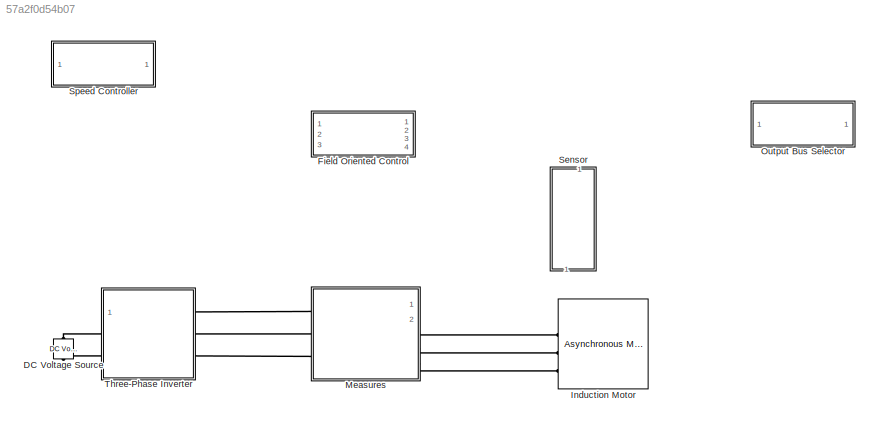
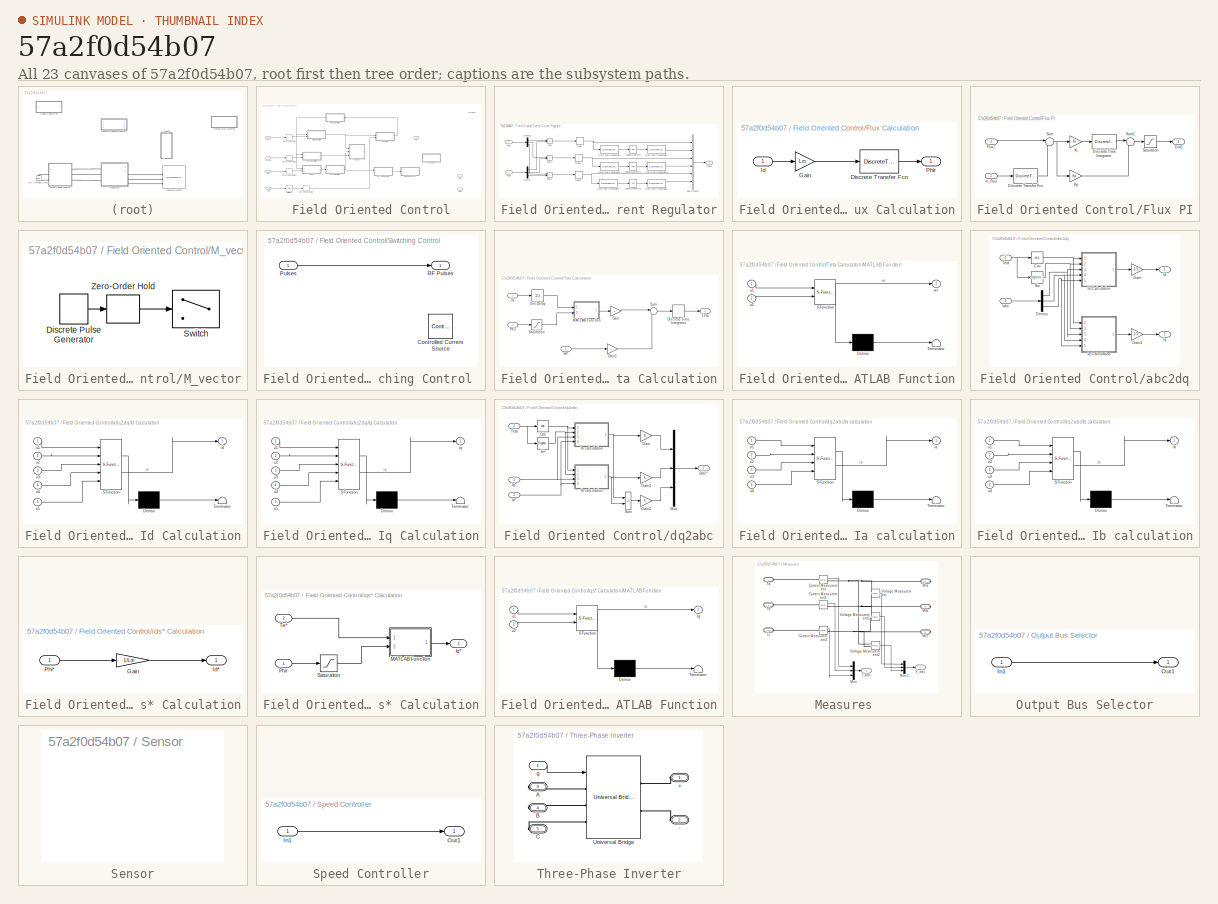
[diagram: thumbnail index - all 23 canvases of the model, root first then tree order]
MODEL slx_57a2f0d54b07
KIND model
CONFIG AbsTol = auto
CONFIG EnableMultiTasking = off
CONFIG FixedStep = auto
CONFIG MaxStep = auto
CONFIG MinStep = auto
CONFIG RelTol = 1e-3
CONFIG SampleTimeConstraint = Unconstrained
CONFIG SolverName = VariableStepAuto
CONFIG StartTime = 0.0
CONFIG StopTime = 10.0
BLOCK [Reference] DC Voltage Source  REF=spsDCVoltageSourceLib/DC Voltage Source
  Ports = [0, 0, 0, 0, 0, 1, 1]
  SourceBlock = spsDCVoltageSourceLib/DC Voltage Source
  SourceProductBaseCode = PS
  SourceType = DC Voltage Source
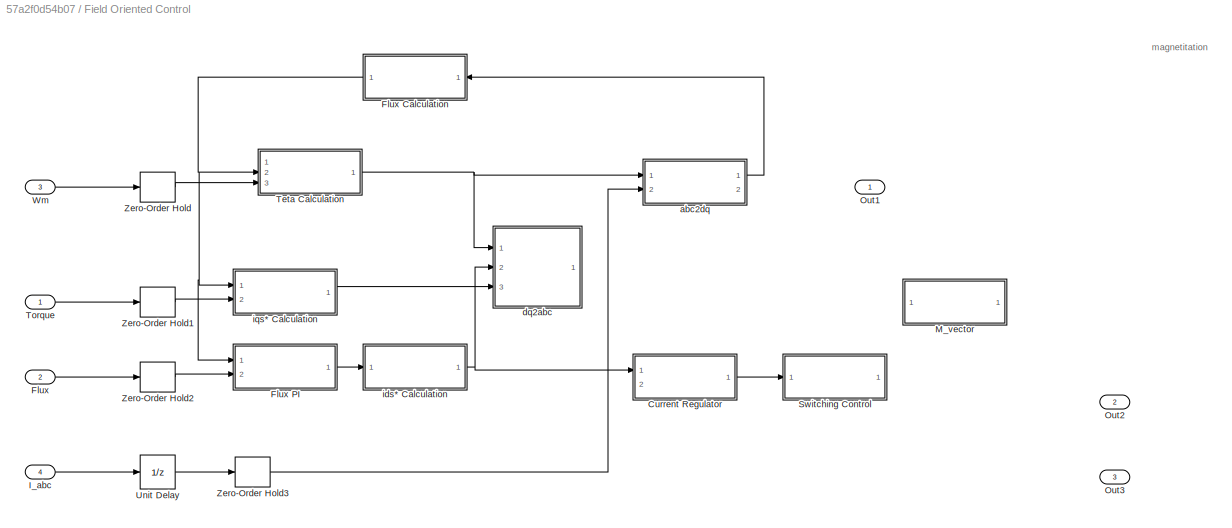
BLOCK [SubSystem] Field Oriented Control
  Ports = [4, 3]
  RequestExecContextInheritance = off
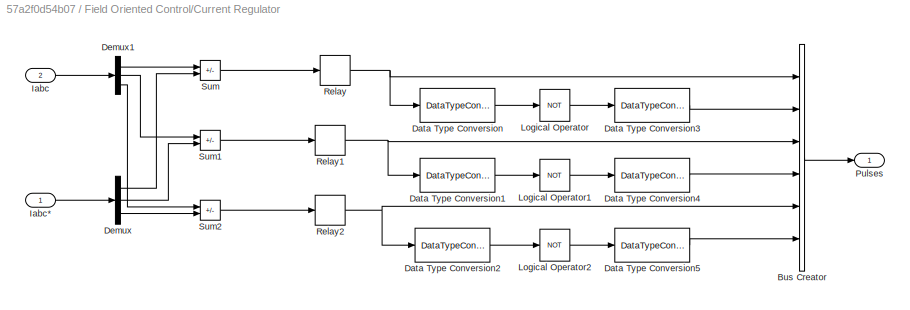
BLOCK [SubSystem] Field Oriented Control/Current Regulator
  Ports = [2, 1]
  RequestExecContextInheritance = off
BLOCK [BusCreator] Field Oriented Control/Current Regulator/Bus Creator
  DisplayOption = bar
  InheritFromInputs = on
  Inputs = 6
  Ports = [6, 1]
BLOCK [DataTypeConversion] Field Oriented Control/Current Regulator/Data Type Conversion
  RndMeth = Floor
  SaturateOnIntegerOverflow = off
BLOCK [DataTypeConversion] Field Oriented Control/Current Regulator/Data Type Conversion1
  RndMeth = Floor
  SaturateOnIntegerOverflow = off
BLOCK [DataTypeConversion] Field Oriented Control/Current Regulator/Data Type Conversion2
  RndMeth = Floor
  SaturateOnIntegerOverflow = off
BLOCK [DataTypeConversion] Field Oriented Control/Current Regulator/Data Type Conversion3
  RndMeth = Floor
  SaturateOnIntegerOverflow = off
BLOCK [DataTypeConversion] Field Oriented Control/Current Regulator/Data Type Conversion4
  RndMeth = Floor
  SaturateOnIntegerOverflow = off
BLOCK [DataTypeConversion] Field Oriented Control/Current Regulator/Data Type Conversion5
  RndMeth = Floor
  SaturateOnIntegerOverflow = off
BLOCK [Demux] Field Oriented Control/Current Regulator/Demux
  DisplayOption = none
  Outputs = 3
  Ports = [1, 3]
BLOCK [Demux] Field Oriented Control/Current Regulator/Demux1
  DisplayOption = none
  Outputs = 3
  Ports = [1, 3]
BLOCK [Inport] Field Oriented Control/Current Regulator/Iabc
  Port = 2
BLOCK [Inport] Field Oriented Control/Current Regulator/Iabc*
BLOCK [Logic] Field Oriented Control/Current Regulator/Logical Operator
  AllPortsSameDT = off
  Operator = NOT
  OutDataTypeStr = boolean
  Ports = [1, 1]
BLOCK [Logic] Field Oriented Control/Current Regulator/Logical Operator1
  AllPortsSameDT = off
  Operator = NOT
  OutDataTypeStr = boolean
  Ports = [1, 1]
BLOCK [Logic] Field Oriented Control/Current Regulator/Logical Operator2
  AllPortsSameDT = off
  Operator = NOT
  OutDataTypeStr = boolean
  Ports = [1, 1]
BLOCK [Outport] Field Oriented Control/Current Regulator/Pulses
BLOCK [Relay] Field Oriented Control/Current Regulator/Relay
  OffSwitchValue = -h/2
  OnSwitchValue = h/2
BLOCK [Relay] Field Oriented Control/Current Regulator/Relay1
  OffSwitchValue = -h/2
  OnSwitchValue = h/2
BLOCK [Relay] Field Oriented Control/Current Regulator/Relay2
  OffSwitchValue = -h/2
  OnSwitchValue = h/2
BLOCK [Sum] Field Oriented Control/Current Regulator/Sum
  IconShape = rectangular
  Inputs = -+
  Ports = [2, 1]
BLOCK [Sum] Field Oriented Control/Current Regulator/Sum1
  IconShape = rectangular
  Inputs = -+
  Ports = [2, 1]
BLOCK [Sum] Field Oriented Control/Current Regulator/Sum2
  IconShape = rectangular
  Inputs = -+
  Ports = [2, 1]
BLOCK [Inport] Field Oriented Control/Flux
  Port = 2
BLOCK [SubSystem] Field Oriented Control/Flux Calculation
  Ports = [1, 1]
  RequestExecContextInheritance = off
BLOCK [DiscreteTransferFcn] Field Oriented Control/Flux Calculation/Discrete Transfer Fcn
  Denominator = [1-exp(-(Rr/(Lr))*Tvect)]
  InputPortMap = u0
  Numerator = [1-exp(-(Rr/(Lr))*Tvect)]
  Ports = [1, 1]
  SampleTime = Tvect
BLOCK [Gain] Field Oriented Control/Flux Calculation/Gain
  Gain = Lm
BLOCK [Inport] Field Oriented Control/Flux Calculation/Id
BLOCK [Outport] Field Oriented Control/Flux Calculation/Phir
BLOCK [SubSystem] Field Oriented Control/Flux PI
  Ports = [2, 1]
  RequestExecContextInheritance = off
BLOCK [DiscreteTransferFcn] Field Oriented Control/Flux PI/Discrete Transfer Fcn
  Denominator = [1-exp(-(2*pi*fc)*Tvect)]
  InputPortMap = u0
  Numerator = [1-exp(-(2*pi*fc)*Tvect)]
  Ports = [1, 1]
  SampleTime = Tvect
BLOCK [DiscreteIntegrator] Field Oriented Control/Flux PI/Discrete-Time Integrator
  ICPrevOutput = DiscIntNeverNeededParam
  ICPrevScaledInput = DiscIntNeverNeededParam
  InitialConditionSetting = Auto
  IntegratorMethod = Integration: Trapezoidal
  LimitOutput = on
  LowerSaturationLimit = csat(1)
  Ports = [1, 1]
  SampleTime = Tvect
  UpperSaturationLimit = csat(2)
BLOCK [Inport] Field Oriented Control/Flux PI/Flux*
  Port = 2
BLOCK [Gain] Field Oriented Control/Flux PI/Ki
  Gain = Ki
BLOCK [Gain] Field Oriented Control/Flux PI/Kp
  Gain = Kp
BLOCK [Outport] Field Oriented Control/Flux PI/Out1
BLOCK [Saturate] Field Oriented Control/Flux PI/Saturation
  LowerLimit = cast(1)
  UpperLimit = csat(2)
BLOCK [Sum] Field Oriented Control/Flux PI/Sum
  Inputs = |+-
  Ports = [2, 1]
BLOCK [Sum] Field Oriented Control/Flux PI/Sum1
  Inputs = |++
  Ports = [2, 1]
BLOCK [Inport] Field Oriented Control/Flux PI/m_Flux
BLOCK [Inport] Field Oriented Control/I_abc
  Port = 4
BLOCK [SubSystem] Field Oriented Control/M_vector
  Ports = []
  RequestExecContextInheritance = off
BLOCK [DiscretePulseGenerator] Field Oriented Control/M_vector/Discrete Pulse Generator
  Period = 8
  Ports = [0, 1]
  PulseWidth = 2
  SampleTime = Tvect
BLOCK [Switch] Field Oriented Control/M_vector/Switch
  Criteria = u2 > Threshold
  InputSameDT = off
  SaturateOnIntegerOverflow = off
BLOCK [ZeroOrderHold] Field Oriented Control/M_vector/Zero-Order Hold
  SampleTime = Tvect
BLOCK [Outport] Field Oriented Control/Out1
BLOCK [Outport] Field Oriented Control/Out2
  Port = 2
BLOCK [Outport] Field Oriented Control/Out3
  Port = 3
BLOCK [SubSystem] Field Oriented Control/Switching Control 
  Ports = [1, 1]
  RequestExecContextInheritance = off
BLOCK [Reference] Field Oriented Control/Switching Control /Controlled Current Source  REF=fl_lib/Electrical/Electrical Sources/Controlled Current
Source
  NameLocation = right
  Ports = [0, 0, 0, 0, 0, 1, 2]
  SourceBlock = fl_lib/Electrical/Electrical Sources/Controlled Current\nSource
  SourceProductBaseCode = SS
  SourceType = Controlled Current\nSource
BLOCK [Inport] Field Oriented Control/Switching Control /Pulses
BLOCK [Outport] Field Oriented Control/Switching Control /RF Pulses
BLOCK [SubSystem] Field Oriented Control/Teta Calculation
  Ports = [3, 1]
  RequestExecContextInheritance = off
BLOCK [DiscreteIntegrator] Field Oriented Control/Teta Calculation/Discrete-Time Integrator
  ICPrevOutput = DiscIntNeverNeededParam
  ICPrevScaledInput = DiscIntNeverNeededParam
  InitialConditionSetting = Auto
  IntegratorMethod = Integration: Trapezoidal
  Ports = [1, 1]
  SampleTime = Tvect
BLOCK [Gain] Field Oriented Control/Teta Calculation/Gain
BLOCK [Gain] Field Oriented Control/Teta Calculation/Gain1
  Gain = p
BLOCK [Inport] Field Oriented Control/Teta Calculation/Iq
BLOCK [SubSystem] Field Oriented Control/Teta Calculation/MATLAB Function
  ErrorFcn = Stateflow.Translate.translate
  PermitHierarchicalResolution = ExplicitOnly
  Ports = [2, 1]
  RequestExecContextInheritance = off
  SFBlockType = MATLAB Function
  TreatAsAtomicUnit = on
BLOCK [Demux] Field Oriented Control/Teta Calculation/MATLAB Function/ Demux 
  Outputs = 1
  Ports = [1, 1]
BLOCK [S-Function] Field Oriented Control/Teta Calculation/MATLAB Function/ SFunction 
  EnableBusSupport = on
  FunctionName = sf_sfun
  PortCounts = [2 2]
  Ports = [2, 2]
  SFcnIsStateOwnerBlock = off
  SFunctionDeploymentMode = off
  Tag = Stateflow S-Function 4
BLOCK [Terminator] Field Oriented Control/Teta Calculation/MATLAB Function/ Terminator 
BLOCK [Inport] Field Oriented Control/Teta Calculation/MATLAB Function/u1
BLOCK [Inport] Field Oriented Control/Teta Calculation/MATLAB Function/u2
  Port = 2
BLOCK [Outport] Field Oriented Control/Teta Calculation/MATLAB Function/wr
BLOCK [Inport] Field Oriented Control/Teta Calculation/Phir
  Port = 2
BLOCK [Saturate] Field Oriented Control/Teta Calculation/Saturation
  LowerLimit = 1e-3
  UpperLimit = inf
BLOCK [Sum] Field Oriented Control/Teta Calculation/Sum
  Inputs = |++
  Ports = [2, 1]
BLOCK [Outport] Field Oriented Control/Teta Calculation/Teta
BLOCK [UnitDelay] Field Oriented Control/Teta Calculation/Unit Delay
  HasFrameUpgradeWarning = on
  SampleTime = -1
BLOCK [Inport] Field Oriented Control/Teta Calculation/wm
  Port = 3
BLOCK [Inport] Field Oriented Control/Torque
BLOCK [UnitDelay] Field Oriented Control/Unit Delay
  HasFrameUpgradeWarning = on
  SampleTime = -1
BLOCK [Inport] Field Oriented Control/Wm
  Port = 3
BLOCK [ZeroOrderHold] Field Oriented Control/Zero-Order Hold
  SampleTime = Tvect
BLOCK [ZeroOrderHold] Field Oriented Control/Zero-Order Hold1
  SampleTime = Tvect
BLOCK [ZeroOrderHold] Field Oriented Control/Zero-Order Hold2
  SampleTime = Tvect
BLOCK [ZeroOrderHold] Field Oriented Control/Zero-Order Hold3
  SampleTime = Tvect
BLOCK [SubSystem] Field Oriented Control/abc2dq
  Ports = [2, 2]
  RequestExecContextInheritance = off
BLOCK [Trigonometry] Field Oriented Control/abc2dq/Cos
  Operator = cos
  Ports = [1, 1]
BLOCK [Demux] Field Oriented Control/abc2dq/Demux
  DisplayOption = none
  Outputs = 3
  Ports = [1, 3]
BLOCK [Gain] Field Oriented Control/abc2dq/Gain
  Gain = 2/3
BLOCK [Gain] Field Oriented Control/abc2dq/Gain1
  Gain = 2/3
BLOCK [Inport] Field Oriented Control/abc2dq/Iabc
  Port = 2
BLOCK [Outport] Field Oriented Control/abc2dq/Id
BLOCK [SubSystem] Field Oriented Control/abc2dq/Id Calculation
  ErrorFcn = Stateflow.Translate.translate
  PermitHierarchicalResolution = ExplicitOnly
  Ports = [5, 1]
  RequestExecContextInheritance = off
  SFBlockType = MATLAB Function
  TreatAsAtomicUnit = on
BLOCK [Demux] Field Oriented Control/abc2dq/Id Calculation/ Demux 
  Outputs = 1
  Ports = [1, 1]
BLOCK [S-Function] Field Oriented Control/abc2dq/Id Calculation/ SFunction 
  EnableBusSupport = on
  FunctionName = sf_sfun
  PortCounts = [5 2]
  Ports = [5, 2]
  SFcnIsStateOwnerBlock = off
  SFunctionDeploymentMode = off
  Tag = Stateflow S-Function 5
BLOCK [Terminator] Field Oriented Control/abc2dq/Id Calculation/ Terminator 
BLOCK [Outport] Field Oriented Control/abc2dq/Id Calculation/id
BLOCK [Inport] Field Oriented Control/abc2dq/Id Calculation/u1
BLOCK [Inport] Field Oriented Control/abc2dq/Id Calculation/u2
  Port = 2
BLOCK [Inport] Field Oriented Control/abc2dq/Id Calculation/u3
  Port = 3
BLOCK [Inport] Field Oriented Control/abc2dq/Id Calculation/u4
  Port = 4
BLOCK [Inport] Field Oriented Control/abc2dq/Id Calculation/u5
  Port = 5
BLOCK [Outport] Field Oriented Control/abc2dq/Iq
  Port = 2
BLOCK [SubSystem] Field Oriented Control/abc2dq/Iq Calculation
  ErrorFcn = Stateflow.Translate.translate
  PermitHierarchicalResolution = ExplicitOnly
  Ports = [5, 1]
  RequestExecContextInheritance = off
  SFBlockType = MATLAB Function
  TreatAsAtomicUnit = on
BLOCK [Demux] Field Oriented Control/abc2dq/Iq Calculation/ Demux 
  Outputs = 1
  Ports = [1, 1]
BLOCK [S-Function] Field Oriented Control/abc2dq/Iq Calculation/ SFunction 
  EnableBusSupport = on
  FunctionName = sf_sfun
  PortCounts = [5 2]
  Ports = [5, 2]
  SFcnIsStateOwnerBlock = off
  SFunctionDeploymentMode = off
  Tag = Stateflow S-Function 6
BLOCK [Terminator] Field Oriented Control/abc2dq/Iq Calculation/ Terminator 
BLOCK [Outport] Field Oriented Control/abc2dq/Iq Calculation/iq
BLOCK [Inport] Field Oriented Control/abc2dq/Iq Calculation/u1
BLOCK [Inport] Field Oriented Control/abc2dq/Iq Calculation/u2
  Port = 2
BLOCK [Inport] Field Oriented Control/abc2dq/Iq Calculation/u3
  Port = 3
BLOCK [Inport] Field Oriented Control/abc2dq/Iq Calculation/u4
  Port = 4
BLOCK [Inport] Field Oriented Control/abc2dq/Iq Calculation/u5
  Port = 5
BLOCK [Trigonometry] Field Oriented Control/abc2dq/Sin
  Ports = [1, 1]
BLOCK [Inport] Field Oriented Control/abc2dq/Teta
BLOCK [SubSystem] Field Oriented Control/dq2abc
  Ports = [3, 1]
  RequestExecContextInheritance = off
BLOCK [Trigonometry] Field Oriented Control/dq2abc/Cos
  Operator = cos
  Ports = [1, 1]
BLOCK [Gain] Field Oriented Control/dq2abc/Gain
BLOCK [Gain] Field Oriented Control/dq2abc/Gain1
BLOCK [Gain] Field Oriented Control/dq2abc/Gain2
BLOCK [SubSystem] Field Oriented Control/dq2abc/Ia calculation
  ErrorFcn = Stateflow.Translate.translate
  PermitHierarchicalResolution = ExplicitOnly
  Ports = [4, 1]
  RequestExecContextInheritance = off
  SFBlockType = MATLAB Function
  TreatAsAtomicUnit = on
BLOCK [Demux] Field Oriented Control/dq2abc/Ia calculation/ Demux 
  Outputs = 1
  Ports = [1, 1]
BLOCK [S-Function] Field Oriented Control/dq2abc/Ia calculation/ SFunction 
  EnableBusSupport = on
  FunctionName = sf_sfun
  PortCounts = [4 2]
  Ports = [4, 2]
  SFcnIsStateOwnerBlock = off
  SFunctionDeploymentMode = off
  Tag = Stateflow S-Function 1
BLOCK [Terminator] Field Oriented Control/dq2abc/Ia calculation/ Terminator 
BLOCK [Outport] Field Oriented Control/dq2abc/Ia calculation/ia
BLOCK [Inport] Field Oriented Control/dq2abc/Ia calculation/u1
BLOCK [Inport] Field Oriented Control/dq2abc/Ia calculation/u2
  Port = 2
BLOCK [Inport] Field Oriented Control/dq2abc/Ia calculation/u3
  Port = 3
BLOCK [Inport] Field Oriented Control/dq2abc/Ia calculation/u4
  Port = 4
BLOCK [Outport] Field Oriented Control/dq2abc/Iabc*
BLOCK [SubSystem] Field Oriented Control/dq2abc/Ib calculation
  ErrorFcn = Stateflow.Translate.translate
  PermitHierarchicalResolution = ExplicitOnly
  Ports = [4, 1]
  RequestExecContextInheritance = off
  SFBlockType = MATLAB Function
  TreatAsAtomicUnit = on
BLOCK [Demux] Field Oriented Control/dq2abc/Ib calculation/ Demux 
  Outputs = 1
  Ports = [1, 1]
BLOCK [S-Function] Field Oriented Control/dq2abc/Ib calculation/ SFunction 
  EnableBusSupport = on
  FunctionName = sf_sfun
  PortCounts = [4 2]
  Ports = [4, 2]
  SFcnIsStateOwnerBlock = off
  SFunctionDeploymentMode = off
  Tag = Stateflow S-Function 3
BLOCK [Terminator] Field Oriented Control/dq2abc/Ib calculation/ Terminator 
BLOCK [Outport] Field Oriented Control/dq2abc/Ib calculation/ib
BLOCK [Inport] Field Oriented Control/dq2abc/Ib calculation/u1
BLOCK [Inport] Field Oriented Control/dq2abc/Ib calculation/u2
  Port = 2
BLOCK [Inport] Field Oriented Control/dq2abc/Ib calculation/u3
  Port = 3
BLOCK [Inport] Field Oriented Control/dq2abc/Ib calculation/u4
  Port = 4
BLOCK [Inport] Field Oriented Control/dq2abc/Id*
  Port = 2
BLOCK [Inport] Field Oriented Control/dq2abc/Iq*
  Port = 3
BLOCK [Mux] Field Oriented Control/dq2abc/Mux
  Inputs = 3
  Ports = [3, 1]
BLOCK [Trigonometry] Field Oriented Control/dq2abc/Sin
  Ports = [1, 1]
BLOCK [Sum] Field Oriented Control/dq2abc/Sum
  IconShape = rectangular
  Inputs = --
  Ports = [2, 1]
BLOCK [Inport] Field Oriented Control/dq2abc/Teta
BLOCK [SubSystem] Field Oriented Control/ids* Calculation
  Ports = [1, 1]
  RequestExecContextInheritance = off
BLOCK [Gain] Field Oriented Control/ids* Calculation/Gain
  Gain = 1/Lm
BLOCK [Outport] Field Oriented Control/ids* Calculation/Id*
BLOCK [Inport] Field Oriented Control/ids* Calculation/Phi*
BLOCK [SubSystem] Field Oriented Control/iqs* Calculation
  Ports = [2, 1]
  RequestExecContextInheritance = off
BLOCK [Outport] Field Oriented Control/iqs* Calculation/Iq*
BLOCK [SubSystem] Field Oriented Control/iqs* Calculation/MATLAB Function
  ErrorFcn = Stateflow.Translate.translate
  PermitHierarchicalResolution = ExplicitOnly
  Ports = [2, 1]
  RequestExecContextInheritance = off
  SFBlockType = MATLAB Function
  TreatAsAtomicUnit = on
BLOCK [Demux] Field Oriented Control/iqs* Calculation/MATLAB Function/ Demux 
  Outputs = 1
  Ports = [1, 1]
BLOCK [S-Function] Field Oriented Control/iqs* Calculation/MATLAB Function/ SFunction 
  EnableBusSupport = on
  FunctionName = sf_sfun
  PortCounts = [2 2]
  Ports = [2, 2]
  SFcnIsStateOwnerBlock = off
  SFunctionDeploymentMode = off
  Tag = Stateflow S-Function 2
BLOCK [Terminator] Field Oriented Control/iqs* Calculation/MATLAB Function/ Terminator 
BLOCK [Outport] Field Oriented Control/iqs* Calculation/MATLAB Function/Iq
BLOCK [Inport] Field Oriented Control/iqs* Calculation/MATLAB Function/u1
BLOCK [Inport] Field Oriented Control/iqs* Calculation/MATLAB Function/u2
  Port = 2
BLOCK [Inport] Field Oriented Control/iqs* Calculation/Phir
BLOCK [Saturate] Field Oriented Control/iqs* Calculation/Saturation
  LowerLimit = 1e-3
  UpperLimit = inf
BLOCK [Inport] Field Oriented Control/iqs* Calculation/Te*
  Port = 2
BLOCK [Reference] Induction Motor  REF=spsAsynchronousMachinepuUnitsLib/Asynchronous Machine
pu Units
  Ports = [1, 1, 0, 0, 0, 3]
  SourceBlock = spsAsynchronousMachinepuUnitsLib/Asynchronous Machine\npu Units
  SourceProductBaseCode = PS
  SourceType = Asynchronous Machine
BLOCK [SubSystem] Measures 
  NameLocation = top
  Ports = [0, 2, 0, 0, 0, 3, 3]
  RequestExecContextInheritance = off
BLOCK [Reference] Measures /Current Measurement  REF=spsCurrentMeasurementLib/Current Measurement
  Ports = [0, 1, 0, 0, 0, 1, 1]
  SourceBlock = spsCurrentMeasurementLib/Current Measurement
  SourceProductBaseCode = PS
  SourceType = Current Measurement
  UserDataPersistent = on
BLOCK [Reference] Measures /Current Measurement1  REF=spsCurrentMeasurementLib/Current Measurement
  Ports = [0, 1, 0, 0, 0, 1, 1]
  SourceBlock = spsCurrentMeasurementLib/Current Measurement
  SourceProductBaseCode = PS
  SourceType = Current Measurement
  UserDataPersistent = on
BLOCK [Reference] Measures /Current Measurement2  REF=spsCurrentMeasurementLib/Current Measurement
  Ports = [0, 1, 0, 0, 0, 1, 1]
  SourceBlock = spsCurrentMeasurementLib/Current Measurement
  SourceProductBaseCode = PS
  SourceType = Current Measurement
  UserDataPersistent = on
BLOCK [Outport] Measures /I_abc
BLOCK [PMIOPort] Measures /Mta 
  Port = 4
  Side = Right
BLOCK [PMIOPort] Measures /Mtb
  Port = 5
  Side = Right
BLOCK [PMIOPort] Measures /Mtc
  Port = 6
  Side = Right
BLOCK [Mux] Measures /Mux
  DisplayOption = bar
  Inputs = 3
  Ports = [3, 1]
BLOCK [Mux] Measures /Mux1
  DisplayOption = bar
  Inputs = 3
  Ports = [3, 1]
BLOCK [PMIOPort] Measures /Ta
  Side = Left
BLOCK [PMIOPort] Measures /Tb
  Port = 2
  Side = Left
BLOCK [PMIOPort] Measures /Tc
  Port = 3
  Side = Left
BLOCK [Outport] Measures /V_abc
  Port = 2
BLOCK [Reference] Measures /Voltage Measurement  REF=spsVoltageMeasurementLib/Voltage Measurement
  Ports = [0, 1, 0, 0, 0, 2]
  SourceBlock = spsVoltageMeasurementLib/Voltage Measurement
  SourceProductBaseCode = PS
  SourceType = Voltage Measurement
  UserDataPersistent = on
BLOCK [Reference] Measures /Voltage Measurement1  REF=spsVoltageMeasurementLib/Voltage Measurement
  Ports = [0, 1, 0, 0, 0, 2]
  SourceBlock = spsVoltageMeasurementLib/Voltage Measurement
  SourceProductBaseCode = PS
  SourceType = Voltage Measurement
  UserDataPersistent = on
BLOCK [Reference] Measures /Voltage Measurement2  REF=spsVoltageMeasurementLib/Voltage Measurement
  Ports = [0, 1, 0, 0, 0, 2]
  SourceBlock = spsVoltageMeasurementLib/Voltage Measurement
  SourceProductBaseCode = PS
  SourceType = Voltage Measurement
  UserDataPersistent = on
BLOCK [SubSystem] Output Bus Selector
  Ports = [1, 1]
  RequestExecContextInheritance = off
BLOCK [Inport] Output Bus Selector/In1
BLOCK [Outport] Output Bus Selector/Out1
BLOCK [SubSystem] Sensor
  NameLocation = right
  Ports = []
  RequestExecContextInheritance = off
BLOCK [SubSystem] Speed Controller
  Ports = [1, 1]
  RequestExecContextInheritance = off
BLOCK [Inport] Speed Controller/In1
BLOCK [Outport] Speed Controller/Out1
BLOCK [SubSystem] Three-Phase Inverter
  Ports = [1, 0, 0, 0, 0, 2, 3]
  RequestExecContextInheritance = off
BLOCK [PMIOPort] Three-Phase Inverter/+
  Side = Left
BLOCK [PMIOPort] Three-Phase Inverter/-
  Port = 2
  Side = Left
BLOCK [PMIOPort] Three-Phase Inverter/A
  Port = 3
  Side = Right
BLOCK [PMIOPort] Three-Phase Inverter/B
  Port = 4
  Side = Right
BLOCK [PMIOPort] Three-Phase Inverter/C
  Port = 5
  Side = Right
BLOCK [Reference] Three-Phase Inverter/Universal Bridge  REF=spsUniversalBridgeLib/Universal Bridge
  Ports = [1, 0, 0, 0, 0, 3, 2]
  SourceBlock = spsUniversalBridgeLib/Universal Bridge
  SourceProductBaseCode = PS
  SourceType = Universal Bridge
BLOCK [Inport] Three-Phase Inverter/g
ANNOTATION Field Oriented Control: magnetitation
LINE Field Oriented Control/Current Regulator/Bus Creator:1 -> Field Oriented Control/Current Regulator/Pulses:1
LINE Field Oriented Control/Current Regulator/Data Type Conversion1:1 -> Field Oriented Control/Current Regulator/Logical Operator1:1
LINE Field Oriented Control/Current Regulator/Data Type Conversion2:1 -> Field Oriented Control/Current Regulator/Logical Operator2:1
LINE Field Oriented Control/Current Regulator/Data Type Conversion3:1 -> Field Oriented Control/Current Regulator/Bus Creator:2
LINE Field Oriented Control/Current Regulator/Data Type Conversion4:1 -> Field Oriented Control/Current Regulator/Bus Creator:4
LINE Field Oriented Control/Current Regulator/Data Type Conversion5:1 -> Field Oriented Control/Current Regulator/Bus Creator:6
LINE Field Oriented Control/Current Regulator/Data Type Conversion:1 -> Field Oriented Control/Current Regulator/Logical Operator:1
LINE Field Oriented Control/Current Regulator/Demux1:1 -> Field Oriented Control/Current Regulator/Sum:1
LINE Field Oriented Control/Current Regulator/Demux1:2 -> Field Oriented Control/Current Regulator/Sum1:1
LINE Field Oriented Control/Current Regulator/Demux1:3 -> Field Oriented Control/Current Regulator/Sum2:1
LINE Field Oriented Control/Current Regulator/Demux:1 -> Field Oriented Control/Current Regulator/Sum:2
LINE Field Oriented Control/Current Regulator/Demux:2 -> Field Oriented Control/Current Regulator/Sum1:2
LINE Field Oriented Control/Current Regulator/Demux:3 -> Field Oriented Control/Current Regulator/Sum2:2
LINE Field Oriented Control/Current Regulator/Iabc*:1 -> Field Oriented Control/Current Regulator/Demux:1
LINE Field Oriented Control/Current Regulator/Iabc:1 -> Field Oriented Control/Current Regulator/Demux1:1
LINE Field Oriented Control/Current Regulator/Logical Operator1:1 -> Field Oriented Control/Current Regulator/Data Type Conversion4:1
LINE Field Oriented Control/Current Regulator/Logical Operator2:1 -> Field Oriented Control/Current Regulator/Data Type Conversion5:1
LINE Field Oriented Control/Current Regulator/Logical Operator:1 -> Field Oriented Control/Current Regulator/Data Type Conversion3:1
NET Field Oriented Control/Current Regulator/Relay1:1 -> Field Oriented Control/Current Regulator/Bus Creator:3, Field Oriented Control/Current Regulator/Data Type Conversion1:1
NET Field Oriented Control/Current Regulator/Relay2:1 -> Field Oriented Control/Current Regulator/Bus Creator:5, Field Oriented Control/Current Regulator/Data Type Conversion2:1
NET Field Oriented Control/Current Regulator/Relay:1 -> Field Oriented Control/Current Regulator/Bus Creator:1, Field Oriented Control/Current Regulator/Data Type Conversion:1
LINE Field Oriented Control/Current Regulator/Sum1:1 -> Field Oriented Control/Current Regulator/Relay1:1
LINE Field Oriented Control/Current Regulator/Sum2:1 -> Field Oriented Control/Current Regulator/Relay2:1
LINE Field Oriented Control/Current Regulator/Sum:1 -> Field Oriented Control/Current Regulator/Relay:1
LINE Field Oriented Control/Current Regulator:1 -> Field Oriented Control/Switching Control :1
LINE Field Oriented Control/Flux Calculation/Discrete Transfer Fcn:1 -> Field Oriented Control/Flux Calculation/Phir:1
LINE Field Oriented Control/Flux Calculation/Gain:1 -> Field Oriented Control/Flux Calculation/Discrete Transfer Fcn:1
LINE Field Oriented Control/Flux Calculation/Id:1 -> Field Oriented Control/Flux Calculation/Gain:1
NET Field Oriented Control/Flux Calculation:1 -> Field Oriented Control/Flux PI:1, Field Oriented Control/Teta Calculation:2, Field Oriented Control/iqs* Calculation:1
LINE Field Oriented Control/Flux PI/Discrete Transfer Fcn:1 -> Field Oriented Control/Flux PI/Sum:2
LINE Field Oriented Control/Flux PI/Discrete-Time Integrator:1 -> Field Oriented Control/Flux PI/Sum1:1
LINE Field Oriented Control/Flux PI/Flux*:1 -> Field Oriented Control/Flux PI/Sum:1
LINE Field Oriented Control/Flux PI/Ki:1 -> Field Oriented Control/Flux PI/Discrete-Time Integrator:1
LINE Field Oriented Control/Flux PI/Kp:1 -> Field Oriented Control/Flux PI/Sum1:2
LINE Field Oriented Control/Flux PI/Saturation:1 -> Field Oriented Control/Flux PI/Out1:1
LINE Field Oriented Control/Flux PI/Sum1:1 -> Field Oriented Control/Flux PI/Saturation:1
NET Field Oriented Control/Flux PI/Sum:1 -> Field Oriented Control/Flux PI/Ki:1, Field Oriented Control/Flux PI/Kp:1
LINE Field Oriented Control/Flux PI/m_Flux:1 -> Field Oriented Control/Flux PI/Discrete Transfer Fcn:1
LINE Field Oriented Control/Flux PI:1 -> Field Oriented Control/ids* Calculation:1
LINE Field Oriented Control/Flux:1 -> Field Oriented Control/Zero-Order Hold2:1
LINE Field Oriented Control/I_abc:1 -> Field Oriented Control/Unit Delay:1
LINE Field Oriented Control/M_vector/Discrete Pulse Generator:1 -> Field Oriented Control/M_vector/Zero-Order Hold:1
LINE Field Oriented Control/M_vector/Zero-Order Hold:1 -> Field Oriented Control/M_vector/Switch:2
LINE Field Oriented Control/Switching Control /Pulses:1 -> Field Oriented Control/Switching Control /RF Pulses:1
LINE Field Oriented Control/Teta Calculation/Discrete-Time Integrator:1 -> Field Oriented Control/Teta Calculation/Teta:1
LINE Field Oriented Control/Teta Calculation/Gain1:1 -> Field Oriented Control/Teta Calculation/Sum:2
LINE Field Oriented Control/Teta Calculation/Gain:1 -> Field Oriented Control/Teta Calculation/Sum:1
LINE Field Oriented Control/Teta Calculation/Iq:1 -> Field Oriented Control/Teta Calculation/Unit Delay:1
LINE Field Oriented Control/Teta Calculation/MATLAB Function:1 -> Field Oriented Control/Teta Calculation/Gain:1
LINE Field Oriented Control/Teta Calculation/Phir:1 -> Field Oriented Control/Teta Calculation/Saturation:1
LINE Field Oriented Control/Teta Calculation/Saturation:1 -> Field Oriented Control/Teta Calculation/MATLAB Function:2
LINE Field Oriented Control/Teta Calculation/Sum:1 -> Field Oriented Control/Teta Calculation/Discrete-Time Integrator:1
LINE Field Oriented Control/Teta Calculation/Unit Delay:1 -> Field Oriented Control/Teta Calculation/MATLAB Function:1
LINE Field Oriented Control/Teta Calculation/wm:1 -> Field Oriented Control/Teta Calculation/Gain1:1
NET Field Oriented Control/Teta Calculation:1 -> Field Oriented Control/abc2dq:1, Field Oriented Control/dq2abc:1
LINE Field Oriented Control/Torque:1 -> Field Oriented Control/Zero-Order Hold1:1
LINE Field Oriented Control/Unit Delay:1 -> Field Oriented Control/Zero-Order Hold3:1
LINE Field Oriented Control/Wm:1 -> Field Oriented Control/Zero-Order Hold:1
LINE Field Oriented Control/Zero-Order Hold1:1 -> Field Oriented Control/iqs* Calculation:2
LINE Field Oriented Control/Zero-Order Hold2:1 -> Field Oriented Control/Flux PI:2
LINE Field Oriented Control/Zero-Order Hold3:1 -> Field Oriented Control/abc2dq:2
LINE Field Oriented Control/Zero-Order Hold:1 -> Field Oriented Control/Teta Calculation:3
NET Field Oriented Control/abc2dq/Cos:1 -> Field Oriented Control/abc2dq/Id Calculation:1, Field Oriented Control/abc2dq/Iq Calculation:1
NET Field Oriented Control/abc2dq/Demux:1 -> Field Oriented Control/abc2dq/Id Calculation:3, Field Oriented Control/abc2dq/Iq Calculation:3
NET Field Oriented Control/abc2dq/Demux:2 -> Field Oriented Control/abc2dq/Id Calculation:4, Field Oriented Control/abc2dq/Iq Calculation:4
NET Field Oriented Control/abc2dq/Demux:3 -> Field Oriented Control/abc2dq/Id Calculation:5, Field Oriented Control/abc2dq/Iq Calculation:5
LINE Field Oriented Control/abc2dq/Gain1:1 -> Field Oriented Control/abc2dq/Iq:1
LINE Field Oriented Control/abc2dq/Gain:1 -> Field Oriented Control/abc2dq/Id:1
LINE Field Oriented Control/abc2dq/Iabc:1 -> Field Oriented Control/abc2dq/Demux:1
LINE Field Oriented Control/abc2dq/Id Calculation:1 -> Field Oriented Control/abc2dq/Gain:1
LINE Field Oriented Control/abc2dq/Iq Calculation:1 -> Field Oriented Control/abc2dq/Gain1:1
NET Field Oriented Control/abc2dq/Sin:1 -> Field Oriented Control/abc2dq/Id Calculation:2, Field Oriented Control/abc2dq/Iq Calculation:2
NET Field Oriented Control/abc2dq/Teta:1 -> Field Oriented Control/abc2dq/Cos:1, Field Oriented Control/abc2dq/Sin:1
LINE Field Oriented Control/abc2dq:1 -> Field Oriented Control/Flux Calculation:1
NET Field Oriented Control/dq2abc/Cos:1 -> Field Oriented Control/dq2abc/Ia calculation:1, Field Oriented Control/dq2abc/Ib calculation:1
LINE Field Oriented Control/dq2abc/Gain1:1 -> Field Oriented Control/dq2abc/Mux:2
LINE Field Oriented Control/dq2abc/Gain2:1 -> Field Oriented Control/dq2abc/Mux:3
LINE Field Oriented Control/dq2abc/Gain:1 -> Field Oriented Control/dq2abc/Mux:1
NET Field Oriented Control/dq2abc/Ia calculation:1 -> Field Oriented Control/dq2abc/Gain:1, Field Oriented Control/dq2abc/Sum:1
NET Field Oriented Control/dq2abc/Ib calculation:1 -> Field Oriented Control/dq2abc/Gain1:1, Field Oriented Control/dq2abc/Sum:2
NET Field Oriented Control/dq2abc/Id*:1 -> Field Oriented Control/dq2abc/Ia calculation:4, Field Oriented Control/dq2abc/Ib calculation:4
NET Field Oriented Control/dq2abc/Iq*:1 -> Field Oriented Control/dq2abc/Ia calculation:3, Field Oriented Control/dq2abc/Ib calculation:3
LINE Field Oriented Control/dq2abc/Mux:1 -> Field Oriented Control/dq2abc/Iabc*:1
NET Field Oriented Control/dq2abc/Sin:1 -> Field Oriented Control/dq2abc/Ia calculation:2, Field Oriented Control/dq2abc/Ib calculation:2
LINE Field Oriented Control/dq2abc/Sum:1 -> Field Oriented Control/dq2abc/Gain2:1
NET Field Oriented Control/dq2abc/Teta:1 -> Field Oriented Control/dq2abc/Cos:1, Field Oriented Control/dq2abc/Sin:1
LINE Field Oriented Control/ids* Calculation/Gain:1 -> Field Oriented Control/ids* Calculation/Id*:1
LINE Field Oriented Control/ids* Calculation/Phi*:1 -> Field Oriented Control/ids* Calculation/Gain:1
NET Field Oriented Control/ids* Calculation:1 -> Field Oriented Control/Current Regulator:1, Field Oriented Control/dq2abc:2
LINE Field Oriented Control/iqs* Calculation/MATLAB Function:1 -> Field Oriented Control/iqs* Calculation/Iq*:1
LINE Field Oriented Control/iqs* Calculation/Phir:1 -> Field Oriented Control/iqs* Calculation/Saturation:1
LINE Field Oriented Control/iqs* Calculation/Saturation:1 -> Field Oriented Control/iqs* Calculation/MATLAB Function:2
LINE Field Oriented Control/iqs* Calculation/Te*:1 -> Field Oriented Control/iqs* Calculation/MATLAB Function:1
LINE Field Oriented Control/iqs* Calculation:1 -> Field Oriented Control/dq2abc:3
LINE Measures /Current Measurement1:1 -> Measures /Mux:2
LINE Measures /Current Measurement2:1 -> Measures /Mux:3
LINE Measures /Current Measurement:1 -> Measures /Mux:1
LINE Measures /Mux1:1 -> Measures /V_abc:1
LINE Measures /Mux:1 -> Measures /I_abc:1
LINE Measures /Voltage Measurement1:1 -> Measures /Mux1:2
LINE Measures /Voltage Measurement2:1 -> Measures /Mux1:3
LINE Measures /Voltage Measurement:1 -> Measures /Mux1:1
LINE Output Bus Selector/In1:1 -> Output Bus Selector/Out1:1
LINE Speed Controller/In1:1 -> Speed Controller/Out1:1
LINE Three-Phase Inverter/g:1 -> Three-Phase Inverter/Universal Bridge:1
PLINE DC Voltage Source:LConn1 -- Three-Phase Inverter:LConn2
PLINE DC Voltage Source:RConn1 -- Three-Phase Inverter:LConn1
PLINE Induction Motor:LConn1 -- Measures :RConn1
PLINE Induction Motor:LConn2 -- Measures :RConn2
PLINE Induction Motor:LConn3 -- Measures :RConn3
PLINE Measures /Current Measurement1:LConn1 -- Measures /Tb:RConn1
PNET net1: Measures /Current Measurement1:RConn1 -- Measures /Mtb:RConn1 -- Measures /Voltage Measurement1:LConn1 -- Measures /Voltage Measurement:LConn2
PLINE Measures /Current Measurement2:LConn1 -- Measures /Tc:RConn1
PNET net2: Measures /Current Measurement2:RConn1 -- Measures /Mtc:RConn1 -- Measures /Voltage Measurement1:LConn2 -- Measures /Voltage Measurement2:LConn2
PLINE Measures /Current Measurement:LConn1 -- Measures /Ta:RConn1
PNET net3: Measures /Current Measurement:RConn1 -- Measures /Mta :RConn1 -- Measures /Voltage Measurement2:LConn1 -- Measures /Voltage Measurement:LConn1
PLINE Measures :LConn1 -- Three-Phase Inverter:RConn1
PLINE Measures :LConn2 -- Three-Phase Inverter:RConn2
PLINE Measures :LConn3 -- Three-Phase Inverter:RConn3
PLINE Three-Phase Inverter/+:RConn1 -- Three-Phase Inverter/Universal Bridge:RConn1
PLINE Three-Phase Inverter/-:RConn1 -- Three-Phase Inverter/Universal Bridge:RConn2
PLINE Three-Phase Inverter/A:RConn1 -- Three-Phase Inverter/Universal Bridge:LConn1
PLINE Three-Phase Inverter/B:RConn1 -- Three-Phase Inverter/Universal Bridge:LConn2
PLINE Three-Phase Inverter/C:RConn1 -- Three-Phase Inverter/Universal Bridge:LConn3
note: NET lines group one-source signal fan-out (src -> all destinations, sorted); 1:1 wires keep LINE; PNET lines group multi-terminal physical nets as a canonical sorted terminal list (undirected conserving connections); 2-terminal nets keep the pairwise PLINE form
CHART Field Oriented Control/dq2abc/Ia calculation states=1 transitions=1
  STATE_LABEL 'eML_blk_kernel()'
  STATE_LABEL 'SCRIPT:\nfunction ia = fcn(u1, u2, u3, u4)\n\nia = -u3*u2+u4*u1;\n'
CHART Field Oriented Control/iqs* Calculation/MATLAB Function states=1 transitions=1
  STATE_LABEL 'eML_blk_kernel()'
  STATE_LABEL 'SCRIPT:\nfunction Iq = fcn(u1, u2)\n\nIq* = (2/3)*(1/p)*(Lr/Lm)*u1/(u2+1e-3*0);\n\n'
CHART Field Oriented Control/dq2abc/Ib calculation states=1 transitions=1
  STATE_LABEL 'eML_blk_kernel()'
  STATE_LABEL 'SCRIPT:\nfunction ib = fcn(u1, u2, u3, u4)\n\nib = (-u1+1.7320508*u2)*u4*0.5+(u2+1.7320508*u1)*u3*0.5;\n'
CHART Field Oriented Control/Teta Calculation/MATLAB Function states=1 transitions=1
  STATE_LABEL 'eML_blk_kernel()'
  STATE_LABEL 'SCRIPT:\nfunction wr = fcn(u1, u2)\n\nwr = Lm*u1/(u2*(Lr/Rr)+1e-3*0);\n'
CHART Field Oriented Control/abc2dq/Id Calculation states=1 transitions=1
  STATE_LABEL 'eML_blk_kernel()'
  STATE_LABEL 'SCRIPT:\nfunction id = fcn(u1, u2, u3, u4, u5)\n\nid = u1*u3+(1.73*u2-u1)*u4*0.5+(u1-1.73*u2)*u5*0.5;\n'
CHART Field Oriented Control/abc2dq/Iq Calculation states=1 transitions=1
  STATE_LABEL 'eML_blk_kernel()'
  STATE_LABEL 'SCRIPT:\nfunction iq = fcn(u1, u2, u3, u4, u5)\n\niq = -u2*u3+(u2+1.73*u1)*u4*0.5+(u2-1.73*u1)*u5*0.5;\n'
CHART  states=0 transitions=0
CHART  states=0 transitions=0
CHART  states=0 transitions=0
CHART  states=0 transitions=0
CHART  states=0 transitions=0
CHART  states=0 transitions=0
